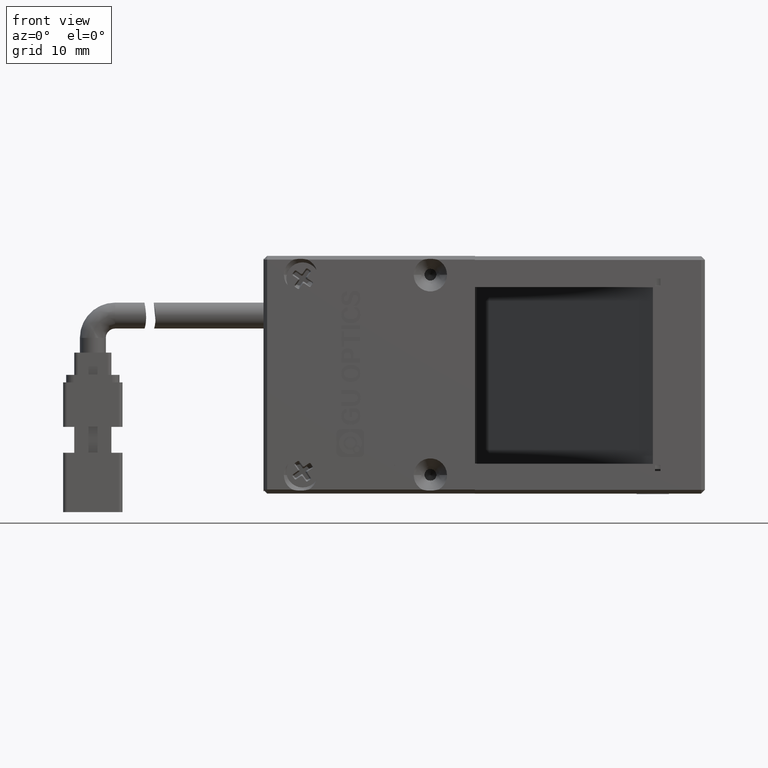
[diagram: clean part render]
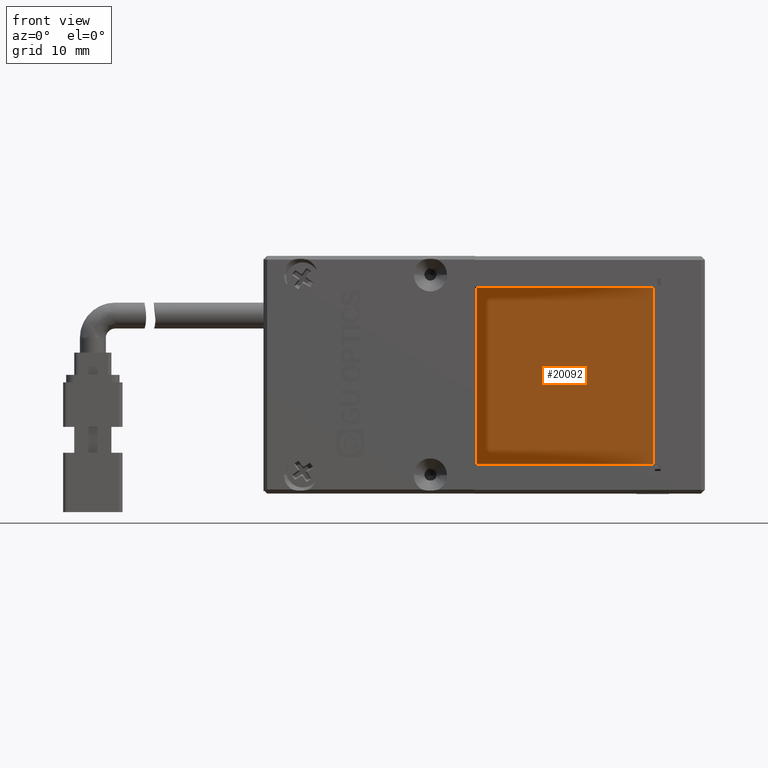
[diagram: same view with one face highlighted and labeled with its STEP entity id]
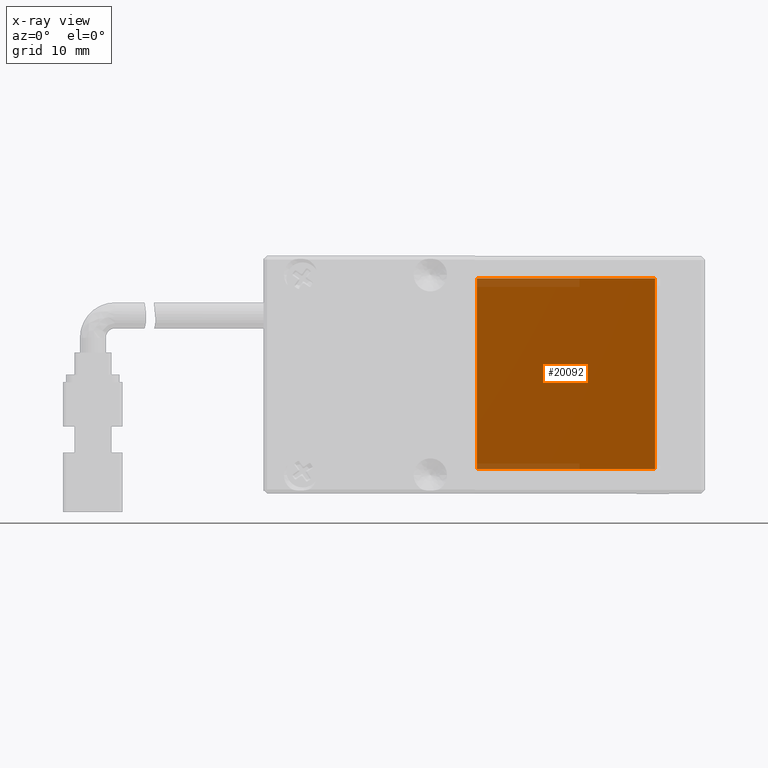
[diagram: x-ray of the same camera — body ghosted, the highlighted face saturated]
A machine part, front view. The second image highlights one B-rep face of the part: STEP entity #20092.
The next image is the same camera in x-ray: the body ghosted, the highlighted face saturated — about 4% of this face is hidden behind the body in this view.
In plain terms, the highlighted planar face has unit normal (-0.7071, -0.7071, -0).
Its self-contained STEP definition (entity closure, byte-faithful):
#3468 = VERTEX_POINT ( 'NONE', #65087 ) ;
#4073 = CARTESIAN_POINT ( 'NONE',  ( -7.676063413966847500, -30.40710678118665200, 47.76069164156516000 ) ) ;
#7915 = ORIENTED_EDGE ( 'NONE', *, *, #70182, .T. ) ;
#11272 = DIRECTION ( 'NONE',  ( 2.369530404383115600E-016, -7.530421126919944900E-017, -1.000000000000000000 ) ) ;
#11897 = VERTEX_POINT ( 'NONE', #59408 ) ;
#14566 = ORIENTED_EDGE ( 'NONE', *, *, #47181, .T. ) ;
#15714 = AXIS2_PLACEMENT_3D ( 'NONE', #55568, #18978, #61650 ) ;
#16107 = DIRECTION ( 'NONE',  ( -2.369530404383115600E-016, 7.530421126919944900E-017, 1.000000000000000000 ) ) ;
#16111 = LINE ( 'NONE', #63529, #60990 ) ;
#17748 = CARTESIAN_POINT ( 'NONE',  ( -7.676063413966847500, -30.40710678118665200, 47.76069164156516000 ) ) ;
#18761 = FACE_OUTER_BOUND ( 'NONE', #76287, .T. ) ;
#18978 = DIRECTION ( 'NONE',  ( -0.7071067811865483500, -0.7071067811865468000, -1.143029832763452200E-016 ) ) ;
#20092 = ADVANCED_FACE ( 'NONE', ( #18761 ), #31002, .T. ) ;
#23394 = VECTOR ( 'NONE', #11272, 1000.000000000000000 ) ;
#24303 = LINE ( 'NONE', #4073, #30042 ) ;
#26529 = EDGE_CURVE ( 'NONE', #3468, #58934, #70160, .T. ) ;
#27598 = VERTEX_POINT ( 'NONE', #17748 ) ;
#30042 = VECTOR ( 'NONE', #16107, 1000.000000000000000 ) ;
#31002 = PLANE ( 'NONE',  #15714 ) ;
#47181 = EDGE_CURVE ( 'NONE', #11897, #27598, #24303, .T. ) ;
#47797 = ORIENTED_EDGE ( 'NONE', *, *, #58858, .T. ) ;
#48097 = CARTESIAN_POINT ( 'NONE',  ( -31.71769397430944400, -6.365476220844006300, 47.76069164156514500 ) ) ;
#55469 = CARTESIAN_POINT ( 'NONE',  ( -31.71769397430943000, -6.365476220844009900, 22.06069164156514600 ) ) ;
#55568 = CARTESIAN_POINT ( 'NONE',  ( -7.676063413966847500, -30.40710678118665200, 47.76069164156516000 ) ) ;
#57665 = DIRECTION ( 'NONE',  ( -0.7071067811865468000, 0.7071067811865483500, -2.207992201570555800E-016 ) ) ;
#58563 = VECTOR ( 'NONE', #60760, 1000.000000000000000 ) ;
#58858 = EDGE_CURVE ( 'NONE', #58934, #11897, #60471, .T. ) ;
#58934 = VERTEX_POINT ( 'NONE', #55469 ) ;
#59408 = CARTESIAN_POINT ( 'NONE',  ( -7.676063413966840400, -30.40710678118665200, 22.06069164156515300 ) ) ;
#59987 = CARTESIAN_POINT ( 'NONE',  ( -7.676063413966840400, -30.40710678118665200, 22.06069164156515300 ) ) ;
#60471 = LINE ( 'NONE', #59987, #58563 ) ;
#60760 = DIRECTION ( 'NONE',  ( 0.7071067811865468000, -0.7071067811865483500, 2.207992201570555800E-016 ) ) ;
#60990 = VECTOR ( 'NONE', #57665, 1000.000000000000000 ) ;
#61650 = DIRECTION ( 'NONE',  ( -2.369530404383115600E-016, 7.530421126919944900E-017, 1.000000000000000000 ) ) ;
#63529 = CARTESIAN_POINT ( 'NONE',  ( -7.676063413966847500, -30.40710678118665200, 47.76069164156516000 ) ) ;
#65087 = CARTESIAN_POINT ( 'NONE',  ( -31.71769397430944400, -6.365476220844006300, 47.76069164156514500 ) ) ;
#66868 = ORIENTED_EDGE ( 'NONE', *, *, #26529, .T. ) ;
#70160 = LINE ( 'NONE', #48097, #23394 ) ;
#70182 = EDGE_CURVE ( 'NONE', #27598, #3468, #16111, .T. ) ;
#76287 = EDGE_LOOP ( 'NONE', ( #66868, #47797, #14566, #7915 ) ) ;